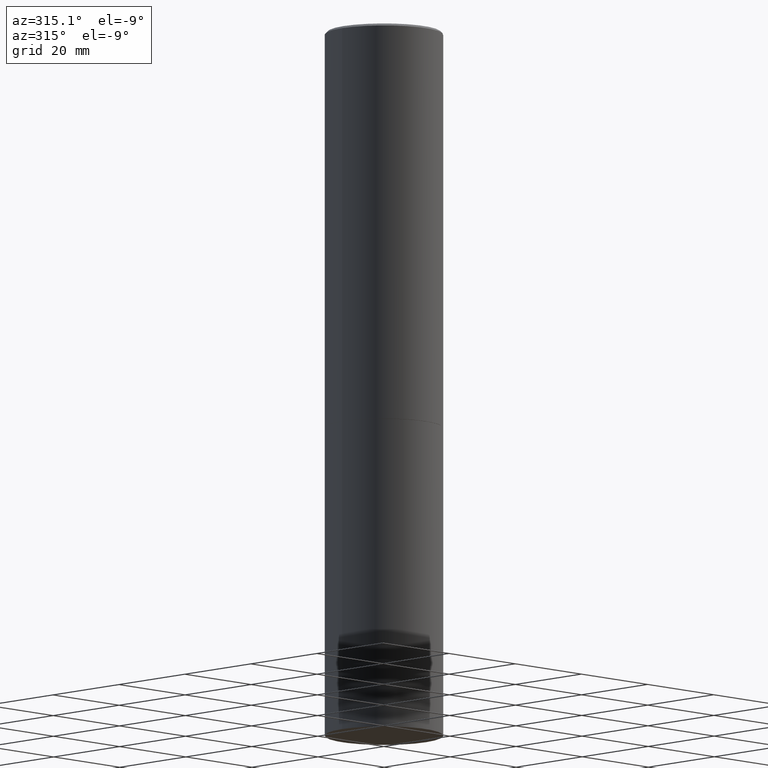
[diagram: clean part render]
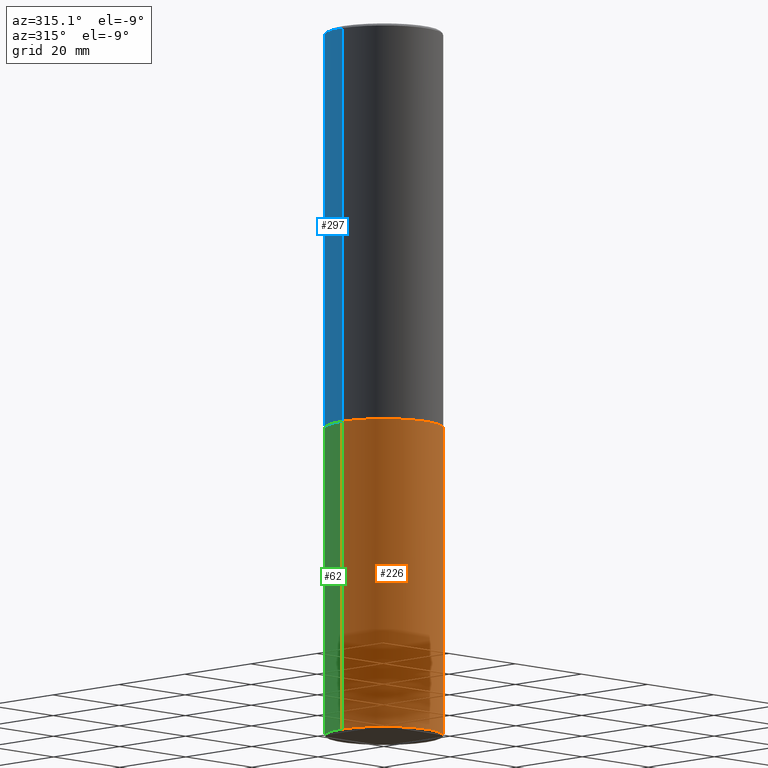
[diagram: same view with three faces highlighted in distinct colors, each labeled with its STEP entity id]
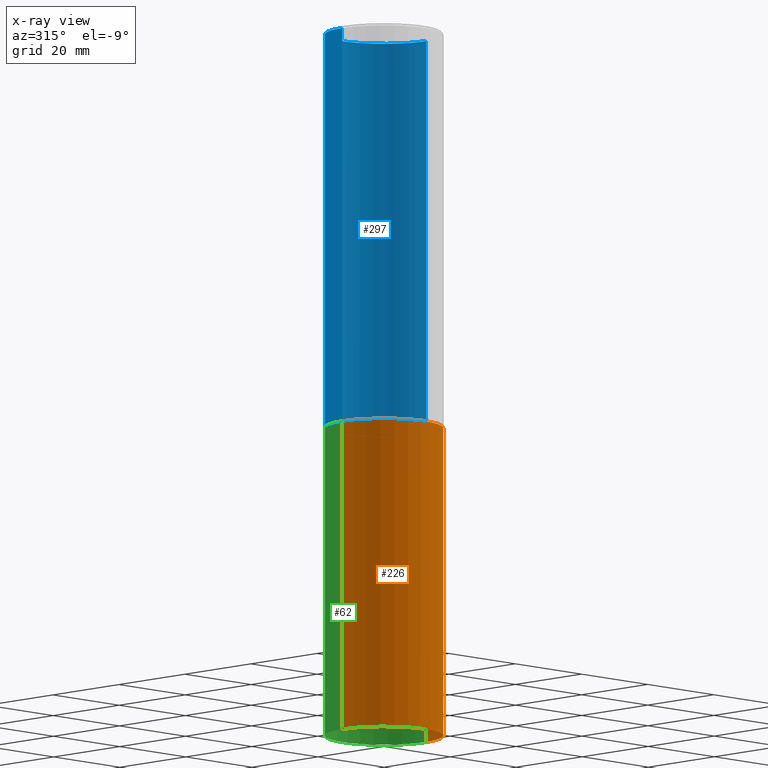
[diagram: x-ray of the same camera — body ghosted, the three highlighted faces saturated]
A machine part, auxiliary view with three faces highlighted in distinct colors.
The next image is the same camera in x-ray (body ghosted, the three faces saturated) — at least one of them is partly hidden behind the body in this view.
Their STEP definitions:

[orange] entity #226 — the highlighted cylindrical surface (partial cylindrical patch) has radius 12.7 mm, axis along (-0, 0, 1).
#4 = CARTESIAN_POINT ( 'NONE',  ( 0.5000000000000000000, -1.527523085743875103E-14, -3.375000000000000444 ) ) ;
#12 = CARTESIAN_POINT ( 'NONE',  ( 0.000000000000000000, 0.000000000000000000, 0.000000000000000000 ) ) ;
#14 = CARTESIAN_POINT ( 'NONE',  ( 0.5000000000000000000, -3.491481338843133355E-15, 2.438088387897967896E-29 ) ) ;
#15 = CARTESIAN_POINT ( 'NONE',  ( 0.5000000000000000000, -2.444036937190200606E-14, -6.000000000000000888 ) ) ;
#24 = VECTOR ( 'NONE', #117, 39.37007874015748143 ) ;
#33 = VERTEX_POINT ( 'NONE', #174 ) ;
#43 = EDGE_CURVE ( 'NONE', #33, #179, #80, .T. ) ;
#51 = ORIENTED_EDGE ( 'NONE', *, *, #43, .F. ) ;
#54 = ORIENTED_EDGE ( 'NONE', *, *, #153, .T. ) ;
#57 = CARTESIAN_POINT ( 'NONE',  ( -0.5000000000000000000, 3.552713678800500929E-15, -2.459467545127452891E-29 ) ) ;
#65 = VERTEX_POINT ( 'NONE', #15 ) ;
#69 = CARTESIAN_POINT ( 'NONE',  ( 1.467281283711081958E-28, -2.094888803305887271E-14, -6.000000000000000888 ) ) ;
#77 = EDGE_CURVE ( 'NONE', #108, #65, #155, .T. ) ;
#80 = CIRCLE ( 'NONE', #187, 0.5000000000000000000 ) ;
#83 = CARTESIAN_POINT ( 'NONE',  ( 8.253457220874837135E-29, -1.178374951859561767E-14, -3.375000000000000444 ) ) ;
#97 = CARTESIAN_POINT ( 'NONE',  ( -0.5000000000000000000, -1.281360509702674426E-14, -6.000000000000000888 ) ) ;
#108 = VERTEX_POINT ( 'NONE', #97 ) ;
#117 = DIRECTION ( 'NONE',  ( -2.445468806185136877E-29, 3.491481338843145188E-15, 1.000000000000000000 ) ) ;
#133 = ORIENTED_EDGE ( 'NONE', *, *, #77, .T. ) ;
#138 = ORIENTED_EDGE ( 'NONE', *, *, #355, .F. ) ;
#145 = CYLINDRICAL_SURFACE ( 'NONE', #287, 0.5000000000000000000 ) ;
#150 = FACE_OUTER_BOUND ( 'NONE', #361, .T. ) ;
#153 = EDGE_CURVE ( 'NONE', #65, #179, #270, .T. ) ;
#155 = CIRCLE ( 'NONE', #215, 0.5000000000000000000 ) ;
#174 = CARTESIAN_POINT ( 'NONE',  ( -0.5000000000000000000, -1.281360509702674426E-14, -3.375000000000000444 ) ) ;
#175 = DIRECTION ( 'NONE',  ( -2.445468806185136877E-29, 3.491481338843145188E-15, 1.000000000000000000 ) ) ;
#178 = LINE ( 'NONE', #57, #331 ) ;
#179 = VERTEX_POINT ( 'NONE', #4 ) ;
#187 = AXIS2_PLACEMENT_3D ( 'NONE', #83, #347, #299 ) ;
#189 = DIRECTION ( 'NONE',  ( -2.445468806185136597E-29, 3.491481338843145583E-15, 1.000000000000000000 ) ) ;
#215 = AXIS2_PLACEMENT_3D ( 'NONE', #69, #189, #248 ) ;
#226 = ADVANCED_FACE ( 'NONE', ( #150 ), #145, .T. ) ;
#248 = DIRECTION ( 'NONE',  ( 1.000000000000000000, -6.982962677686262766E-15, 0.000000000000000000 ) ) ;
#270 = LINE ( 'NONE', #14, #24 ) ;
#278 = DIRECTION ( 'NONE',  ( -2.445468806185136597E-29, 3.491481338843145583E-15, 1.000000000000000000 ) ) ;
#287 = AXIS2_PLACEMENT_3D ( 'NONE', #12, #278, #346 ) ;
#299 = DIRECTION ( 'NONE',  ( 1.000000000000000000, -6.982962677686266711E-15, 0.000000000000000000 ) ) ;
#331 = VECTOR ( 'NONE', #175, 39.37007874015748143 ) ;
#346 = DIRECTION ( 'NONE',  ( 1.000000000000000000, -6.982962677686266711E-15, 4.876176775795935793E-29 ) ) ;
#347 = DIRECTION ( 'NONE',  ( -2.445468806185136597E-29, 3.491481338843145583E-15, 1.000000000000000000 ) ) ;
#355 = EDGE_CURVE ( 'NONE', #108, #33, #178, .T. ) ;
#361 = EDGE_LOOP ( 'NONE', ( #138, #133, #54, #51 ) ) ;

[blue] entity #297 — the highlighted cylindrical surface (partial cylindrical patch) has radius 12.7 mm, axis along (-0, 0, 1).
#1 = VECTOR ( 'NONE', #177, 39.37007874015748143 ) ;
#9 = LINE ( 'NONE', #112, #351 ) ;
#10 = CARTESIAN_POINT ( 'NONE',  ( 0.000000000000000000, 0.000000000000000000, 0.000000000000000000 ) ) ;
#27 = ORIENTED_EDGE ( 'NONE', *, *, #139, .T. ) ;
#32 = FACE_OUTER_BOUND ( 'NONE', #128, .T. ) ;
#39 = CIRCLE ( 'NONE', #335, 0.4999999999999996114 ) ;
#52 = CARTESIAN_POINT ( 'NONE',  ( 4.890937612370299433E-31, -6.982962677686328587E-17, -0.02000000000000010797 ) ) ;
#60 = CARTESIAN_POINT ( 'NONE',  ( 0.4999999999999997780, -3.491481338843131778E-15, 2.438088387897966775E-29 ) ) ;
#63 = CARTESIAN_POINT ( 'NONE',  ( 8.251011752068652653E-29, -1.178025803725677624E-14, -3.374000000000000554 ) ) ;
#76 = VERTEX_POINT ( 'NONE', #121 ) ;
#78 = ORIENTED_EDGE ( 'NONE', *, *, #125, .T. ) ;
#82 = CARTESIAN_POINT ( 'NONE',  ( -0.4999999999999996114, 3.421651712066267296E-15, -0.02000000000000010797 ) ) ;
#86 = CARTESIAN_POINT ( 'NONE',  ( -0.5000000000000000000, -2.372330153216316080E-15, -3.374000000000000554 ) ) ;
#101 = ORIENTED_EDGE ( 'NONE', *, *, #169, .F. ) ;
#102 = CIRCLE ( 'NONE', #294, 0.5000000000000000000 ) ;
#110 = EDGE_CURVE ( 'NONE', #151, #76, #219, .T. ) ;
#112 = CARTESIAN_POINT ( 'NONE',  ( -0.4999999999999997780, 3.552713678800499352E-15, -2.459467545127452050E-29 ) ) ;
#118 = DIRECTION ( 'NONE',  ( -2.445468806185136597E-29, 3.491481338843145583E-15, 1.000000000000000000 ) ) ;
#121 = CARTESIAN_POINT ( 'NONE',  ( 0.4999999999999996114, -3.500078625662626318E-15, -0.02000000000000010797 ) ) ;
#125 = EDGE_CURVE ( 'NONE', #364, #329, #9, .T. ) ;
#128 = EDGE_LOOP ( 'NONE', ( #27, #78, #101, #184 ) ) ;
#139 = EDGE_CURVE ( 'NONE', #151, #364, #102, .T. ) ;
#147 = CARTESIAN_POINT ( 'NONE',  ( 0.5000000000000000000, -1.527173937609990960E-14, -3.374000000000000554 ) ) ;
#151 = VERTEX_POINT ( 'NONE', #147 ) ;
#158 = DIRECTION ( 'NONE',  ( 1.000000000000000000, -6.982962677686266711E-15, 0.000000000000000000 ) ) ;
#167 = DIRECTION ( 'NONE',  ( -2.445468806185136597E-29, 3.491481338843145583E-15, 1.000000000000000000 ) ) ;
#169 = EDGE_CURVE ( 'NONE', #76, #329, #39, .T. ) ;
#177 = DIRECTION ( 'NONE',  ( -2.445468806185136877E-29, 3.491481338843145188E-15, 1.000000000000000000 ) ) ;
#182 = DIRECTION ( 'NONE',  ( -2.445468806185136597E-29, 3.491481338843145583E-15, 1.000000000000000000 ) ) ;
#184 = ORIENTED_EDGE ( 'NONE', *, *, #110, .F. ) ;
#219 = LINE ( 'NONE', #60, #1 ) ;
#236 = DIRECTION ( 'NONE',  ( 1.000000000000000000, -6.982962677686266711E-15, 4.876176775795935793E-29 ) ) ;
#239 = DIRECTION ( 'NONE',  ( -2.445468806185136877E-29, 3.491481338843145188E-15, 1.000000000000000000 ) ) ;
#271 = CYLINDRICAL_SURFACE ( 'NONE', #358, 0.4999999999999997780 ) ;
#291 = DIRECTION ( 'NONE',  ( 1.000000000000000000, -6.982962677686266711E-15, 0.000000000000000000 ) ) ;
#294 = AXIS2_PLACEMENT_3D ( 'NONE', #63, #182, #291 ) ;
#297 = ADVANCED_FACE ( 'NONE', ( #32 ), #271, .T. ) ;
#329 = VERTEX_POINT ( 'NONE', #82 ) ;
#335 = AXIS2_PLACEMENT_3D ( 'NONE', #52, #167, #158 ) ;
#351 = VECTOR ( 'NONE', #239, 39.37007874015748143 ) ;
#358 = AXIS2_PLACEMENT_3D ( 'NONE', #10, #118, #236 ) ;
#364 = VERTEX_POINT ( 'NONE', #86 ) ;

[green] entity #62 — the highlighted cylindrical surface (partial cylindrical patch) has radius 12.7 mm, axis along (-0, 0, 1).
#4 = CARTESIAN_POINT ( 'NONE',  ( 0.5000000000000000000, -1.527523085743875103E-14, -3.375000000000000444 ) ) ;
#14 = CARTESIAN_POINT ( 'NONE',  ( 0.5000000000000000000, -3.491481338843133355E-15, 2.438088387897967896E-29 ) ) ;
#15 = CARTESIAN_POINT ( 'NONE',  ( 0.5000000000000000000, -2.444036937190200606E-14, -6.000000000000000888 ) ) ;
#18 = CARTESIAN_POINT ( 'NONE',  ( 0.000000000000000000, 0.000000000000000000, 0.000000000000000000 ) ) ;
#24 = VECTOR ( 'NONE', #117, 39.37007874015748143 ) ;
#33 = VERTEX_POINT ( 'NONE', #174 ) ;
#57 = CARTESIAN_POINT ( 'NONE',  ( -0.5000000000000000000, 3.552713678800500929E-15, -2.459467545127452891E-29 ) ) ;
#62 = ADVANCED_FACE ( 'NONE', ( #186 ), #246, .T. ) ;
#65 = VERTEX_POINT ( 'NONE', #15 ) ;
#81 = EDGE_CURVE ( 'NONE', #65, #108, #205, .T. ) ;
#97 = CARTESIAN_POINT ( 'NONE',  ( -0.5000000000000000000, -1.281360509702674426E-14, -6.000000000000000888 ) ) ;
#99 = CARTESIAN_POINT ( 'NONE',  ( 8.253457220874837135E-29, -1.178374951859561767E-14, -3.375000000000000444 ) ) ;
#105 = ORIENTED_EDGE ( 'NONE', *, *, #185, .F. ) ;
#108 = VERTEX_POINT ( 'NONE', #97 ) ;
#117 = DIRECTION ( 'NONE',  ( -2.445468806185136877E-29, 3.491481338843145188E-15, 1.000000000000000000 ) ) ;
#143 = CARTESIAN_POINT ( 'NONE',  ( 1.467281283711081958E-28, -2.094888803305887271E-14, -6.000000000000000888 ) ) ;
#153 = EDGE_CURVE ( 'NONE', #65, #179, #270, .T. ) ;
#174 = CARTESIAN_POINT ( 'NONE',  ( -0.5000000000000000000, -1.281360509702674426E-14, -3.375000000000000444 ) ) ;
#175 = DIRECTION ( 'NONE',  ( -2.445468806185136877E-29, 3.491481338843145188E-15, 1.000000000000000000 ) ) ;
#178 = LINE ( 'NONE', #57, #331 ) ;
#179 = VERTEX_POINT ( 'NONE', #4 ) ;
#185 = EDGE_CURVE ( 'NONE', #179, #33, #198, .T. ) ;
#186 = FACE_OUTER_BOUND ( 'NONE', #203, .T. ) ;
#193 = ORIENTED_EDGE ( 'NONE', *, *, #355, .T. ) ;
#198 = CIRCLE ( 'NONE', #340, 0.5000000000000000000 ) ;
#203 = EDGE_LOOP ( 'NONE', ( #282, #193, #105, #313 ) ) ;
#205 = CIRCLE ( 'NONE', #324, 0.5000000000000000000 ) ;
#206 = DIRECTION ( 'NONE',  ( -2.445468806185136597E-29, 3.491481338843145583E-15, 1.000000000000000000 ) ) ;
#222 = DIRECTION ( 'NONE',  ( -2.445468806185136597E-29, 3.491481338843145583E-15, 1.000000000000000000 ) ) ;
#246 = CYLINDRICAL_SURFACE ( 'NONE', #315, 0.5000000000000000000 ) ;
#270 = LINE ( 'NONE', #14, #24 ) ;
#282 = ORIENTED_EDGE ( 'NONE', *, *, #81, .T. ) ;
#313 = ORIENTED_EDGE ( 'NONE', *, *, #153, .F. ) ;
#315 = AXIS2_PLACEMENT_3D ( 'NONE', #18, #206, #316 ) ;
#316 = DIRECTION ( 'NONE',  ( 1.000000000000000000, -6.982962677686266711E-15, 4.876176775795935793E-29 ) ) ;
#322 = DIRECTION ( 'NONE',  ( 1.000000000000000000, -6.982962677686262766E-15, 0.000000000000000000 ) ) ;
#324 = AXIS2_PLACEMENT_3D ( 'NONE', #143, #352, #322 ) ;
#327 = DIRECTION ( 'NONE',  ( 1.000000000000000000, -6.982962677686266711E-15, 0.000000000000000000 ) ) ;
#331 = VECTOR ( 'NONE', #175, 39.37007874015748143 ) ;
#340 = AXIS2_PLACEMENT_3D ( 'NONE', #99, #222, #327 ) ;
#352 = DIRECTION ( 'NONE',  ( -2.445468806185136597E-29, 3.491481338843145583E-15, 1.000000000000000000 ) ) ;
#355 = EDGE_CURVE ( 'NONE', #108, #33, #178, .T. ) ;